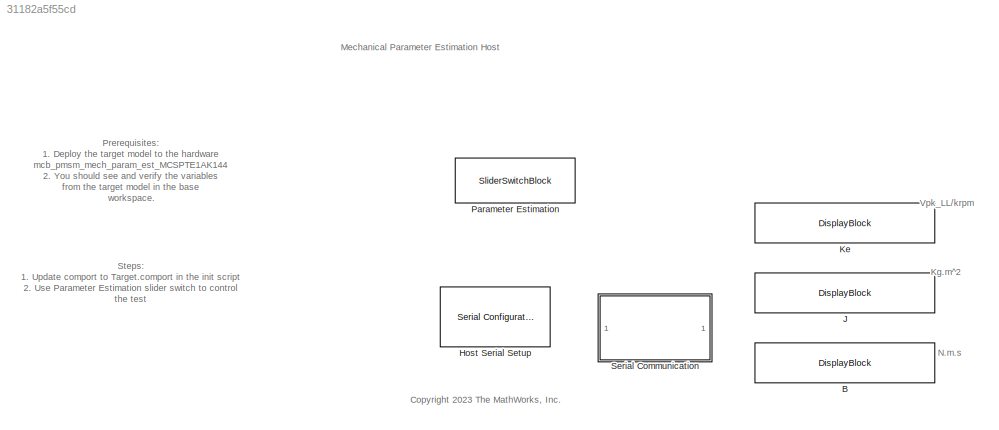
MODEL slx_31182a5f55cd
KIND model
CONFIG AbsTol = auto
CONFIG EnableMultiTasking = on
CONFIG FixedStep = auto
CONFIG MaxStep = auto
CONFIG MinStep = auto
CONFIG RelTol = 1e-3
CONFIG SampleTimeConstraint = Unconstrained
CONFIG SolverName = FixedStepDiscrete
CONFIG StartTime = 0.0
CONFIG StopTime = inf
BLOCK [DisplayBlock] B
  LabelPosition = Hide
  Transparency = 1
BLOCK [Reference] Host Serial Setup  REF=instrumentseriallib/Serial Configuration
  LibrarySourceBlock = mcbhostblockslib/Host Serial Setup
  Priority = -99
  SourceBlock = instrumentseriallib/Serial Configuration
  SourceType = system.SerialConfiguration
BLOCK [DisplayBlock] J
  LabelPosition = Hide
  Transparency = 1
BLOCK [DisplayBlock] Ke
  LabelPosition = Hide
  Transparency = 1
BLOCK [SliderSwitchBlock] Parameter Estimation
  LabelPosition = Hide
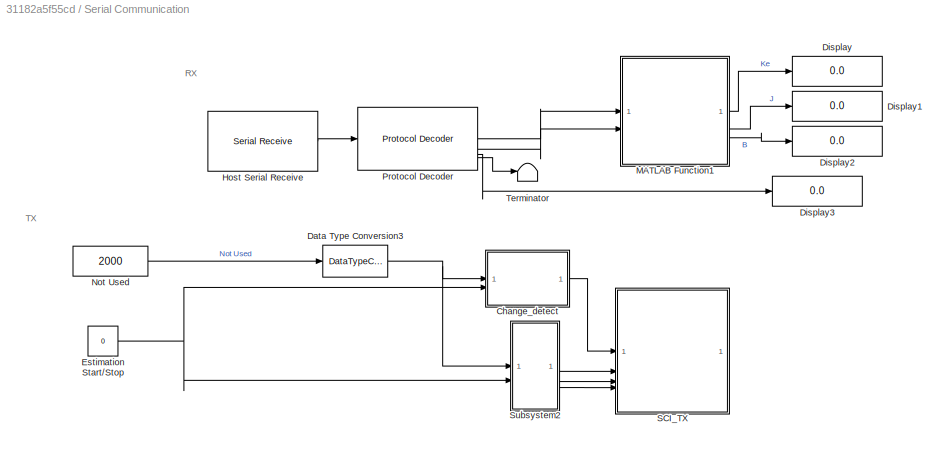
BLOCK [SubSystem] Serial Communication
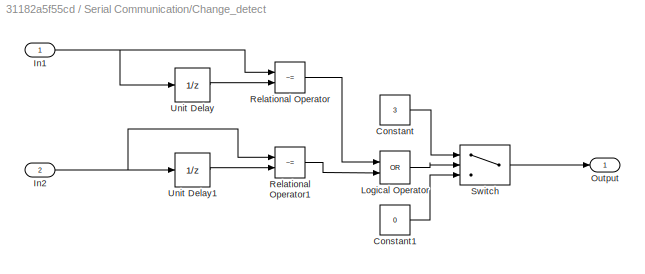
BLOCK [SubSystem] Serial Communication/Change_detect
BLOCK [Constant] Serial Communication/Change_detect/Constant
  OutDataTypeStr = uint8
  Value = 3
BLOCK [Constant] Serial Communication/Change_detect/Constant1
  OutDataTypeStr = uint8
  Value = 0
BLOCK [Inport] Serial Communication/Change_detect/In1
BLOCK [Inport] Serial Communication/Change_detect/In2
  Port = 2
BLOCK [Logic] Serial Communication/Change_detect/Logical Operator
  AllPortsSameDT = off
  Operator = OR
  OutDataTypeStr = boolean
BLOCK [Outport] Serial Communication/Change_detect/Output
BLOCK [RelationalOperator] Serial Communication/Change_detect/Relational Operator
  InputSameDT = off
  Operator = ~=
  OutDataTypeStr = boolean
BLOCK [RelationalOperator] Serial Communication/Change_detect/Relational Operator1
  InputSameDT = off
  Operator = ~=
  OutDataTypeStr = boolean
BLOCK [Switch] Serial Communication/Change_detect/Switch
  Criteria = u2 > Threshold
  InputSameDT = off
  SaturateOnIntegerOverflow = off
BLOCK [UnitDelay] Serial Communication/Change_detect/Unit Delay
  HasFrameUpgradeWarning = on
  InitialCondition = 0.5
  SampleTime = -1
BLOCK [UnitDelay] Serial Communication/Change_detect/Unit Delay1
  HasFrameUpgradeWarning = on
  SampleTime = -1
BLOCK [DataTypeConversion] Serial Communication/Data Type Conversion3
  OutDataTypeStr = fixdt(1,16,12)
  RndMeth = Simplest
  SaturateOnIntegerOverflow = off
BLOCK [Display] Serial Communication/Display
  Decimation = 1
BLOCK [Display] Serial Communication/Display1
  Decimation = 1
BLOCK [Display] Serial Communication/Display2
  Decimation = 1
BLOCK [Display] Serial Communication/Display3
  Decimation = 1
BLOCK [Constant] Serial Communication/Estimation Start//Stop
  OutDataTypeStr = Inherit: Inherit via back propagation
  Value = 0
BLOCK [Reference] Serial Communication/Host Serial Receive  REF=instrumentseriallib/Serial Receive
  LibrarySourceBlock = mcbhostblockslib/Host Serial Receive
  SourceBlock = instrumentseriallib/Serial Receive
  SourceType = system.SerialReceive
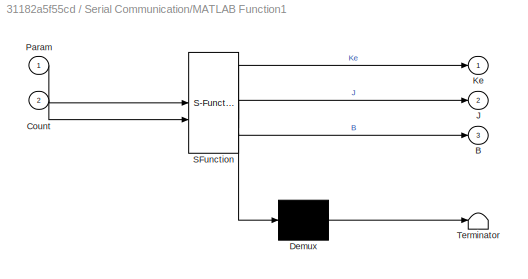
BLOCK [SubSystem] Serial Communication/MATLAB Function1
  ErrorFcn = Stateflow.Translate.translate
  PermitHierarchicalResolution = ExplicitOnly
  SFBlockType = MATLAB Function
  TreatAsAtomicUnit = on
BLOCK [Demux] Serial Communication/MATLAB Function1/ Demux 
  Outputs = 1
BLOCK [S-Function] Serial Communication/MATLAB Function1/ SFunction 
  EnableBusSupport = on
  FunctionName = sf_sfun
  PortCounts = [2 4]
  SFcnIsStateOwnerBlock = off
  SFunctionDeploymentMode = off
  Tag = Stateflow S-Function 2
BLOCK [Terminator] Serial Communication/MATLAB Function1/ Terminator 
BLOCK [Outport] Serial Communication/MATLAB Function1/B
  Port = 3
BLOCK [Inport] Serial Communication/MATLAB Function1/Count
  Port = 2
BLOCK [Outport] Serial Communication/MATLAB Function1/J
  Port = 2
BLOCK [Outport] Serial Communication/MATLAB Function1/Ke
BLOCK [Inport] Serial Communication/MATLAB Function1/Param
BLOCK [Constant] Serial Communication/Not Used
  OutDataTypeStr = single
  SampleTime = Ts_uart * 100
  Value = 2000
  VectorParams1D = off
BLOCK [Reference] Serial Communication/Protocol Decoder  REF=embeddedblockslib/Protocol Decoder
  LibrarySourceBlock = c2000lib/Target Communication/Protocol Decoder
  SourceBlock = embeddedblockslib/Protocol Decoder
  SourceType = matlabshared.embedded_utilities.blocks.ProtocolDecoderBlock
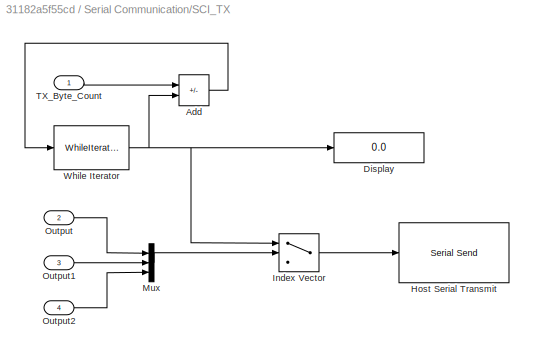
BLOCK [SubSystem] Serial Communication/SCI_TX
  TreatAsAtomicUnit = on
BLOCK [Sum] Serial Communication/SCI_TX/Add
  IconShape = rectangular
  Inputs = +-
  OutDataTypeStr = Inherit: Same as first input
BLOCK [Display] Serial Communication/SCI_TX/Display
  Decimation = 1
BLOCK [Reference] Serial Communication/SCI_TX/Host Serial Transmit  REF=instrumentseriallib/Serial Send
  LibrarySourceBlock = mcbhostblockslib/Host Serial Transmit
  SourceBlock = instrumentseriallib/Serial Send
  SourceType = system.SerialSend
BLOCK [MultiPortSwitch] Serial Communication/SCI_TX/Index Vector
  InputSameDT = off
  Inputs = 1
  SaturateOnIntegerOverflow = off
BLOCK [Mux] Serial Communication/SCI_TX/Mux
  DisplayOption = bar
  Inputs = 3
BLOCK [Inport] Serial Communication/SCI_TX/Output
  Port = 2
BLOCK [Inport] Serial Communication/SCI_TX/Output1
  Port = 3
BLOCK [Inport] Serial Communication/SCI_TX/Output2
  Port = 4
BLOCK [Inport] Serial Communication/SCI_TX/TX_Byte_Count
BLOCK [WhileIterator] Serial Communication/SCI_TX/While Iterator
  MaxIters = 3
  OutputDataType = int16
  ShowIterationPort = on
  WhileBlockType = do-while
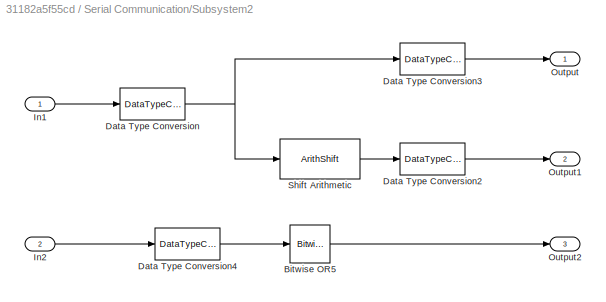
BLOCK [SubSystem] Serial Communication/Subsystem2
BLOCK [Reference] Serial Communication/Subsystem2/Bitwise OR5  REF=simulink/Logic and Bit
Operations/Bitwise
Operator
  SourceBlock = simulink/Logic and Bit\nOperations/Bitwise\nOperator
  SourceType = Bitwise Operator
BLOCK [DataTypeConversion] Serial Communication/Subsystem2/Data Type Conversion
  ConvertRealWorld = Stored Integer (SI)
  OutDataTypeStr = uint16
  RndMeth = Simplest
  SaturateOnIntegerOverflow = off
BLOCK [DataTypeConversion] Serial Communication/Subsystem2/Data Type Conversion2
  ConvertRealWorld = Stored Integer (SI)
  OutDataTypeStr = uint8
  RndMeth = Simplest
  SaturateOnIntegerOverflow = off
BLOCK [DataTypeConversion] Serial Communication/Subsystem2/Data Type Conversion3
  ConvertRealWorld = Stored Integer (SI)
  OutDataTypeStr = uint8
  RndMeth = Simplest
  SaturateOnIntegerOverflow = off
BLOCK [DataTypeConversion] Serial Communication/Subsystem2/Data Type Conversion4
  ConvertRealWorld = Stored Integer (SI)
  OutDataTypeStr = uint8
  RndMeth = Simplest
  SaturateOnIntegerOverflow = off
BLOCK [Inport] Serial Communication/Subsystem2/In1
BLOCK [Inport] Serial Communication/Subsystem2/In2
  Port = 2
BLOCK [Outport] Serial Communication/Subsystem2/Output
BLOCK [Outport] Serial Communication/Subsystem2/Output1
  Port = 2
BLOCK [Outport] Serial Communication/Subsystem2/Output2
  Port = 3
BLOCK [ArithShift] Serial Communication/Subsystem2/Shift Arithmetic
  BitShiftDirection = Right
  BitShiftNumber = 8
  InputPortMap = u0
BLOCK [Terminator] Serial Communication/Terminator
ANNOTATION (root): N.m.s
ANNOTATION (root): Vpk_LL/krpm
ANNOTATION (root): Kg.m^2
ANNOTATION (root): Prerequisites: 1. Deploy the target model to the hardware mcb_pmsm_mech_param_est_MCSPTE1AK144 2. You should see and verify the variables from the target model in the base workspace.
ANNOTATION (root): Steps: 1. Update comport to Target.comport in the init script 2. Use Parameter Estimation slider switch to control the test
ANNOTATION (root): Mechanical Parameter Estimation Host
ANNOTATION (root): <copyright redacted>
ANNOTATION Serial Communication: RX
ANNOTATION Serial Communication: TX
LINE Serial Communication/Change_detect/Constant1:1 -> Serial Communication/Change_detect/Switch:3
LINE Serial Communication/Change_detect/Constant:1 -> Serial Communication/Change_detect/Switch:1
NET Serial Communication/Change_detect/In1:1 -> Serial Communication/Change_detect/Relational Operator:1, Serial Communication/Change_detect/Unit Delay:1
NET Serial Communication/Change_detect/In2:1 -> Serial Communication/Change_detect/Relational Operator1:1, Serial Communication/Change_detect/Unit Delay1:1
LINE Serial Communication/Change_detect/Logical Operator:1 -> Serial Communication/Change_detect/Switch:2
LINE Serial Communication/Change_detect/Relational Operator1:1 -> Serial Communication/Change_detect/Logical Operator:2
LINE Serial Communication/Change_detect/Relational Operator:1 -> Serial Communication/Change_detect/Logical Operator:1
LINE Serial Communication/Change_detect/Switch:1 -> Serial Communication/Change_detect/Output:1
LINE Serial Communication/Change_detect/Unit Delay1:1 -> Serial Communication/Change_detect/Relational Operator1:2
LINE Serial Communication/Change_detect/Unit Delay:1 -> Serial Communication/Change_detect/Relational Operator:2
LINE Serial Communication/Change_detect:1 -> Serial Communication/SCI_TX:1
NET Serial Communication/Data Type Conversion3:1 -> Serial Communication/Change_detect:1, Serial Communication/Subsystem2:1
NET Serial Communication/Estimation Start//Stop:1 -> Serial Communication/Change_detect:2, Serial Communication/Subsystem2:2
LINE Serial Communication/Host Serial Receive:1 -> Serial Communication/Protocol Decoder:1
LINE Serial Communication/MATLAB Function1:1 -> Serial Communication/Display:1
LINE Serial Communication/MATLAB Function1:2 -> Serial Communication/Display1:1
LINE Serial Communication/MATLAB Function1:3 -> Serial Communication/Display2:1
LINE Serial Communication/Not Used:1 -> Serial Communication/Data Type Conversion3:1
LINE Serial Communication/Protocol Decoder:1 -> Serial Communication/MATLAB Function1:1
LINE Serial Communication/Protocol Decoder:2 -> Serial Communication/MATLAB Function1:2
LINE Serial Communication/Protocol Decoder:3 -> Serial Communication/Display3:1
LINE Serial Communication/Protocol Decoder:4 -> Serial Communication/Terminator:1
LINE Serial Communication/SCI_TX/Add:1 -> Serial Communication/SCI_TX/While Iterator:1
LINE Serial Communication/SCI_TX/Index Vector:1 -> Serial Communication/SCI_TX/Host Serial Transmit:1
LINE Serial Communication/SCI_TX/Mux:1 -> Serial Communication/SCI_TX/Index Vector:2
LINE Serial Communication/SCI_TX/Output1:1 -> Serial Communication/SCI_TX/Mux:2
LINE Serial Communication/SCI_TX/Output2:1 -> Serial Communication/SCI_TX/Mux:3
LINE Serial Communication/SCI_TX/Output:1 -> Serial Communication/SCI_TX/Mux:1
LINE Serial Communication/SCI_TX/TX_Byte_Count:1 -> Serial Communication/SCI_TX/Add:1
NET Serial Communication/SCI_TX/While Iterator:1 -> Serial Communication/SCI_TX/Add:2, Serial Communication/SCI_TX/Display:1, Serial Communication/SCI_TX/Index Vector:1
LINE Serial Communication/Subsystem2/Bitwise OR5:1 -> Serial Communication/Subsystem2/Output2:1
LINE Serial Communication/Subsystem2/Data Type Conversion2:1 -> Serial Communication/Subsystem2/Output1:1
LINE Serial Communication/Subsystem2/Data Type Conversion3:1 -> Serial Communication/Subsystem2/Output:1
LINE Serial Communication/Subsystem2/Data Type Conversion4:1 -> Serial Communication/Subsystem2/Bitwise OR5:1
NET Serial Communication/Subsystem2/Data Type Conversion:1 -> Serial Communication/Subsystem2/Data Type Conversion3:1, Serial Communication/Subsystem2/Shift Arithmetic:1
LINE Serial Communication/Subsystem2/In1:1 -> Serial Communication/Subsystem2/Data Type Conversion:1
LINE Serial Communication/Subsystem2/In2:1 -> Serial Communication/Subsystem2/Data Type Conversion4:1
LINE Serial Communication/Subsystem2/Shift Arithmetic:1 -> Serial Communication/Subsystem2/Data Type Conversion2:1
LINE Serial Communication/Subsystem2:1 -> Serial Communication/SCI_TX:2
LINE Serial Communication/Subsystem2:2 -> Serial Communication/SCI_TX:3
LINE Serial Communication/Subsystem2:3 -> Serial Communication/SCI_TX:4
note: NET lines group one-source signal fan-out (src -> all destinations, sorted); 1:1 wires keep LINE
CHART Serial Communication/MATLAB Function1 states=1 transitions=1
  STATE_LABEL 'eML_blk_kernel()'
  STATE_LABEL 'SCRIPT:\nfunction [ Ke, J, B] = unBuf(Param, Count)\n\npersistent KeLocal;\nif isempty(KeLocal)\nKeLocal = single(0);\nend\n\npersistent JLocal;\nif isempty(JLocal)\nJLocal = single(0);\nend\n\npersistent BLocal;\nif isempty(BLocal)\nBLocal = single(0);\nend\n\nif (Count ==1)\n    KeLocal = Param;\nelseif (Count ==2)\n    JLocal = Param;\nelseif (Count ==3)\n    BLocal = Param;\nend\n\nKe = KeLocal;\nJ = JLocal;\nB = BLocal;...<+4ch>'
CHART  states=0 transitions=0
